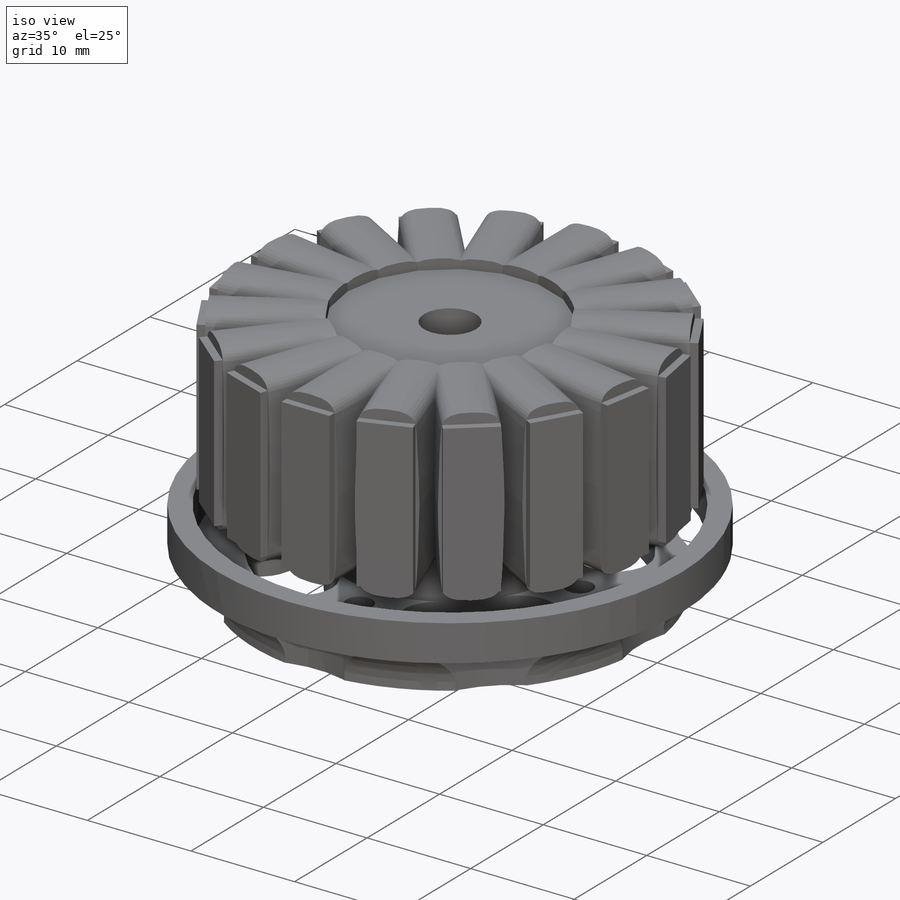
[diagram: iso view]
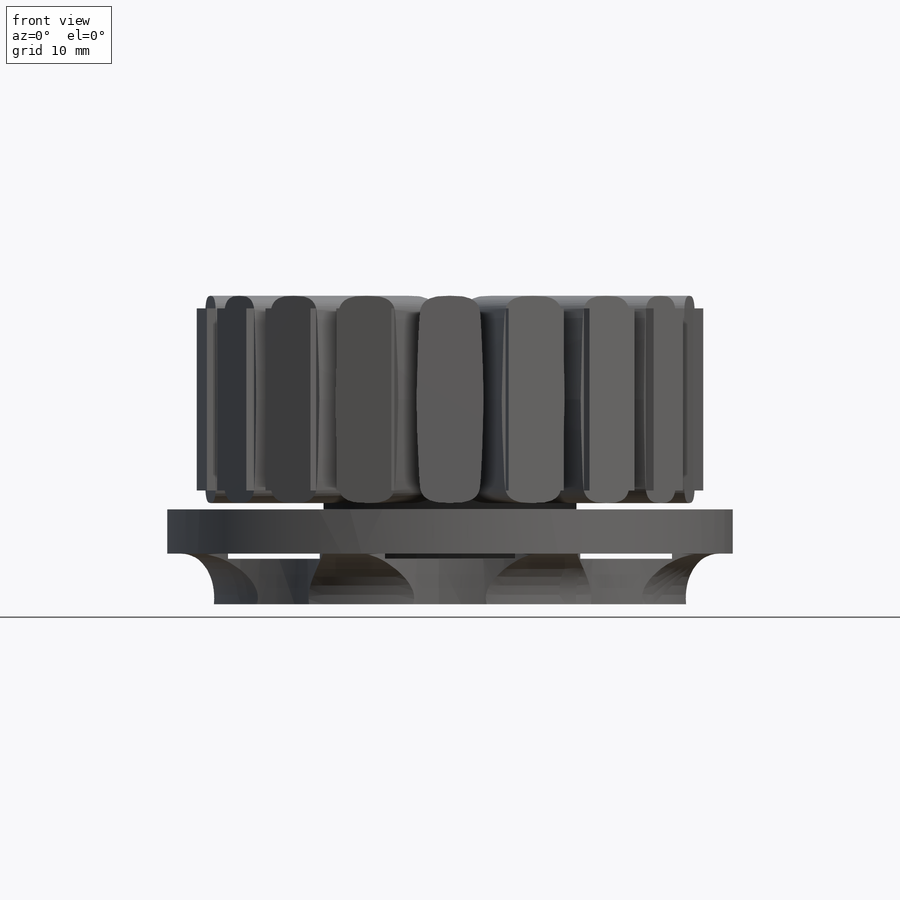
[diagram: front view]
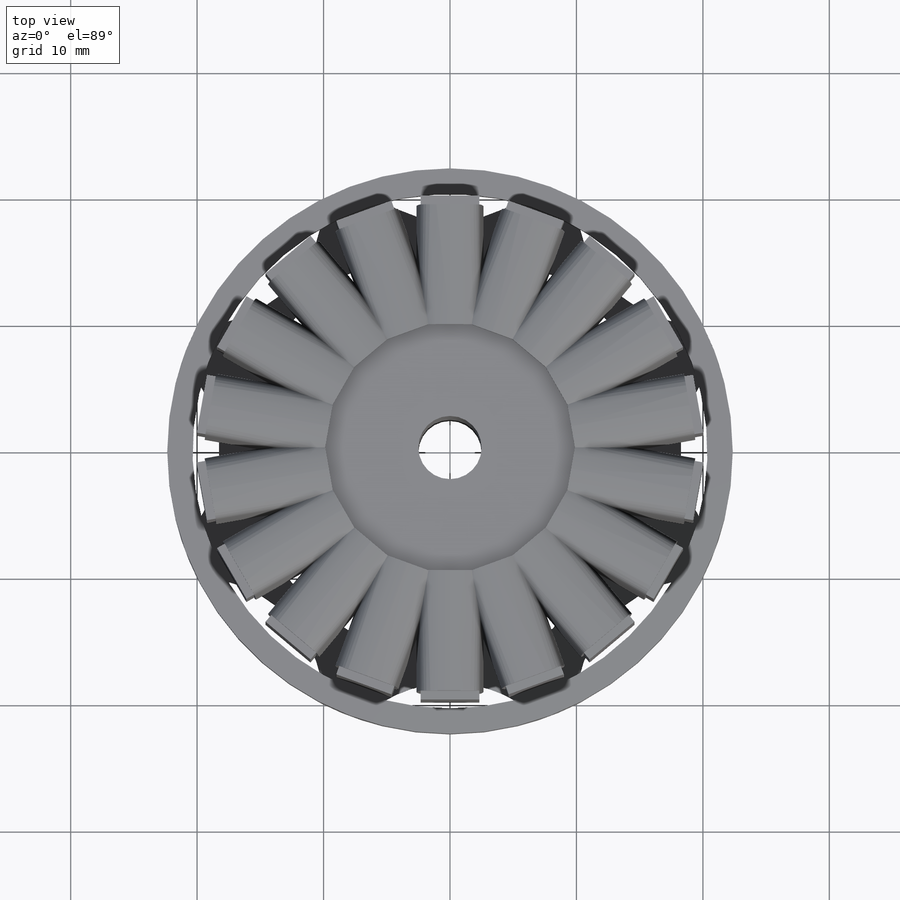
[diagram: top view]
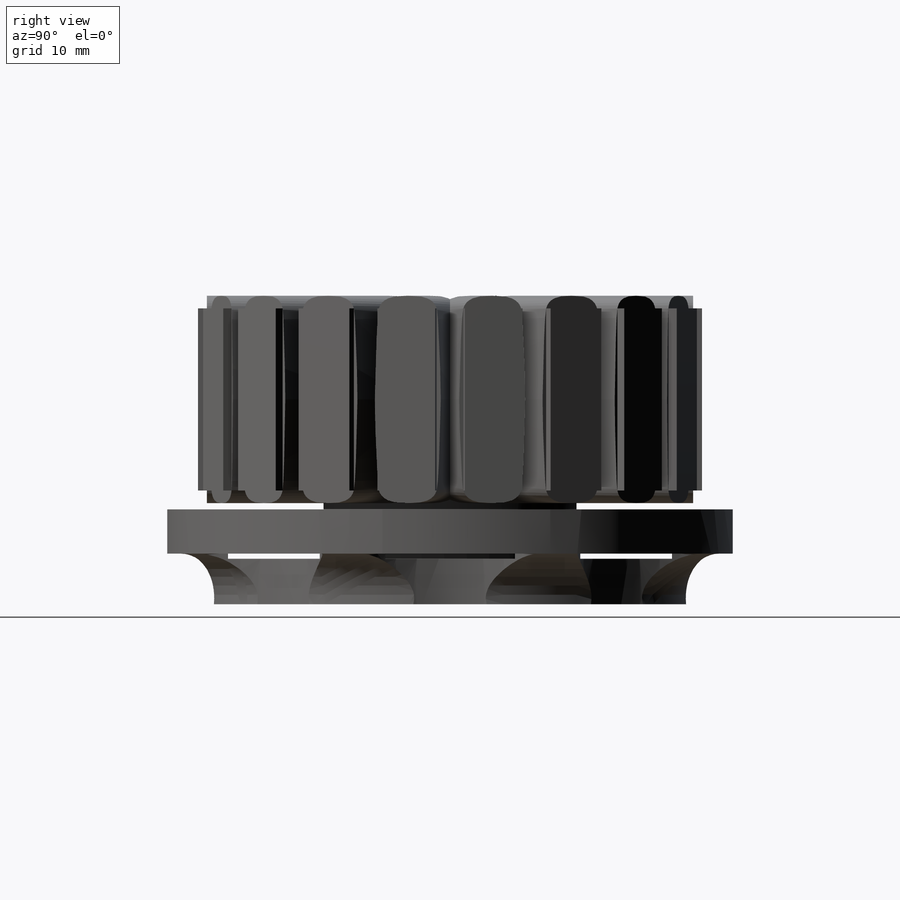
[diagram: right view]
SOLIDWORKS PART (.sldprt)
format: sldprt  version: not decoded by parser v0  size: 1,485,312 bytes
history: native  units: mm
features: sketch x12, cut_extrude x6, extrude x5, pattern_circular x2, material x1, cut_revolve x1, fillet x1 (+13 scaffold rows collapsed)
feature tree (41):
  scaffold x13  (default folders/planes/origin — collapsed)
  material  "Material <not specified>"
  sketch  "Sketch1"  dims[D1=44.72mm]
  extrude  "Boss-Extrude1"  Depth=7.5mm
  sketch  "Sketch4"  dims[D2=7.0mm D1=3.5mm]
  cut_revolve  "Cut-Revolve1"  Angle=360deg
  sketch  "Sketch6"  dims[D1=2.0mm]
  cut_extrude  "Cut-Extrude3"  Depth=3.6mm
  sketch  "Sketch7"  dims[D1=20.0mm]
  extrude  "Boss-Extrude2"  Depth=20.8mm
  sketch  "Sketch9"  dims[c1.D5=20.0mm c1.D6=17.0mm c2.D5=20.0mm c2.D1=0.7mm c2.D2=4.64mm c2.D3=19.58mm c2.D7=0.7mm c2.D4=18.0]
  extrude  "Boss-Extrude3"  Depth=1.5mm
  pattern_circular  "CirPattern1"  Count=18 Angle=20deg
  sketch  "Sketch10"
  cut_extrude  "Cut-Extrude4"  Depth=1mm
  sketch  "Sketch11"  dims[D1=16.0mm]
  cut_extrude  "Cut-Extrude5"  Depth=0.2mm
  sketch  "Sketch12"  dims[D1=7.5mm D2=5.0mm]
  extrude  "Boss-Extrude4"  Depth=0.2mm
  sketch  "Sketch13"
  cut_extrude  "Cut-Extrude6"  Depth=41.2mm
  sketch  "Sketch14"  dims[c1.D1=2.5mm c1.D5=2.0mm c1.D2=12.5mm c1.D4=~20.577271mm c2.D4=45.0deg c2.D6=16.0mm c2.D8=35.37mm c2.D9=7.0mm c2.D10=7.0mm c3.D8=18.5mm c3.D12=3.68mm c3.D3=4.0 c3.D7=3.0 c3.D11=8.0]
  cut_extrude  "Cut-Extrude7"  Depth=4mm
  sketch  "Sketch15"  dims[c1.D1=~30.822056mm c1.D2=32.5mm c1.D3=7.1mm c1.D4=6.0mm c1.D5=6.0mm c1.D6=6.0mm c1.D7=1.5mm c1.D8=1.5mm c2.D1=2.0mm c2.D3=~5.536307mm]
  cut_extrude  "Cut-Extrude8"  Depth=10mm
  sketch  "Sketch16"  dims[c1.D1=~4.870569mm c1.D2=2.65mm c1.D3=1.0mm c2.D1=1.0mm c2.D2=2.65mm]
  extrude  "Boss-Extrude5"  Depth=9.5mm
  pattern_circular  "CirPattern4"  Count=18 Angle=360deg
  fillet  "Fillet2"  Radius=0.5mm
decode coverage: 25 of 27 modeling features carry decoded parameters
note: ~ marks probable driven/reference dimensions
note: suppression state not decoded; provenance and decode notes live in map.json
